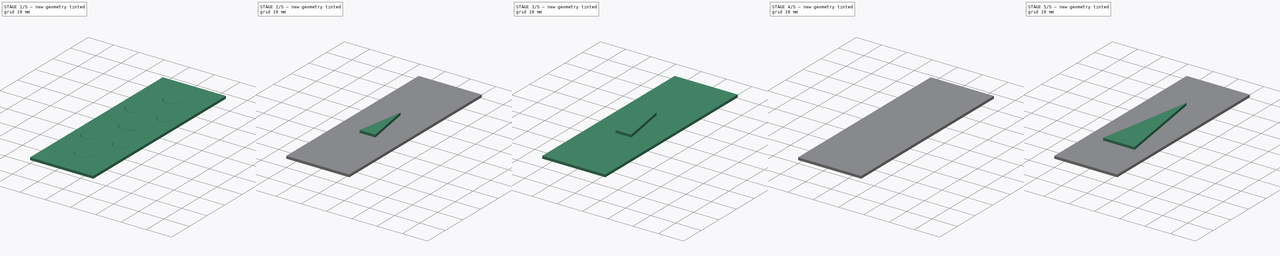
[diagram: build sequence overview — one tinted view per stage of 5, left to right]
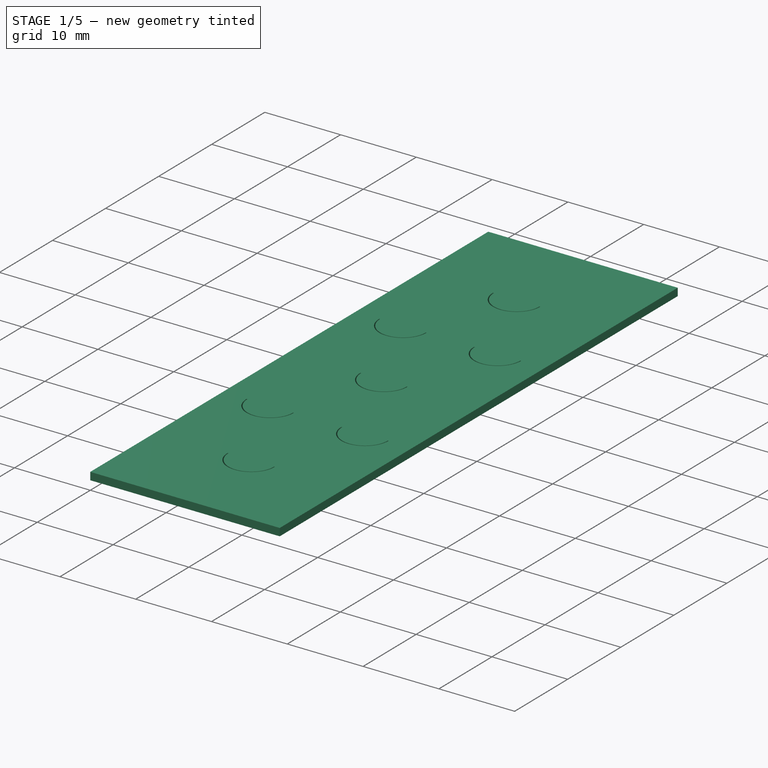
[diagram: stage 1 of 5 — iso view after this stage's code; geometry added in this stage tinted green]
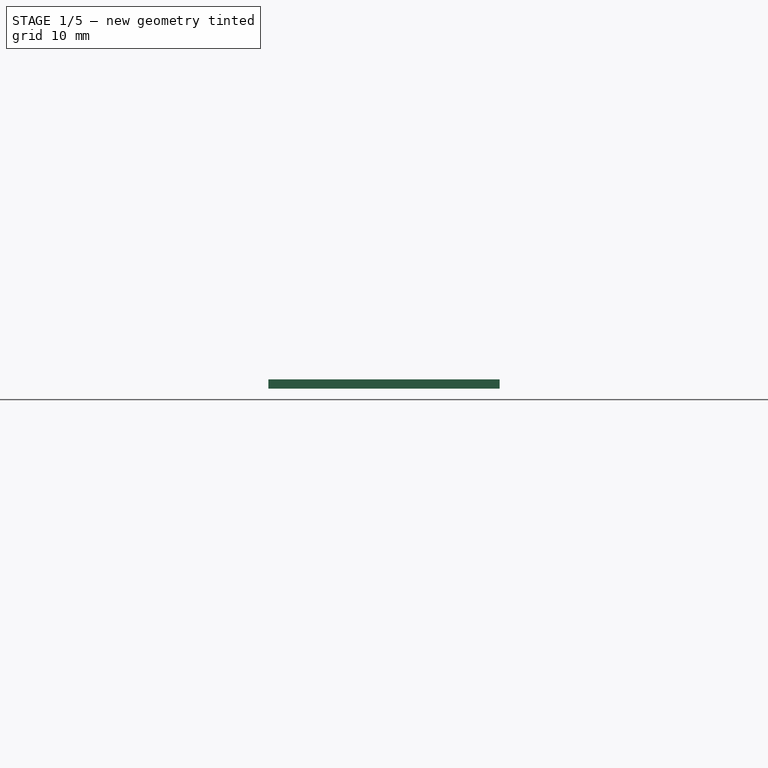
[diagram: stage 1 of 5 — front view after this stage's code; geometry added in this stage tinted green]
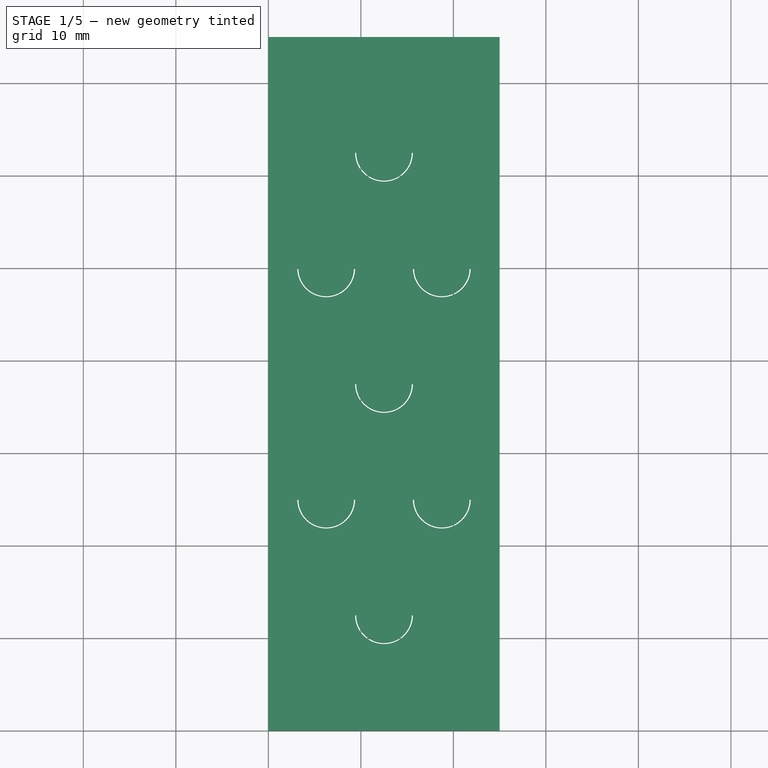
[diagram: stage 1 of 5 — top view after this stage's code; geometry added in this stage tinted green]
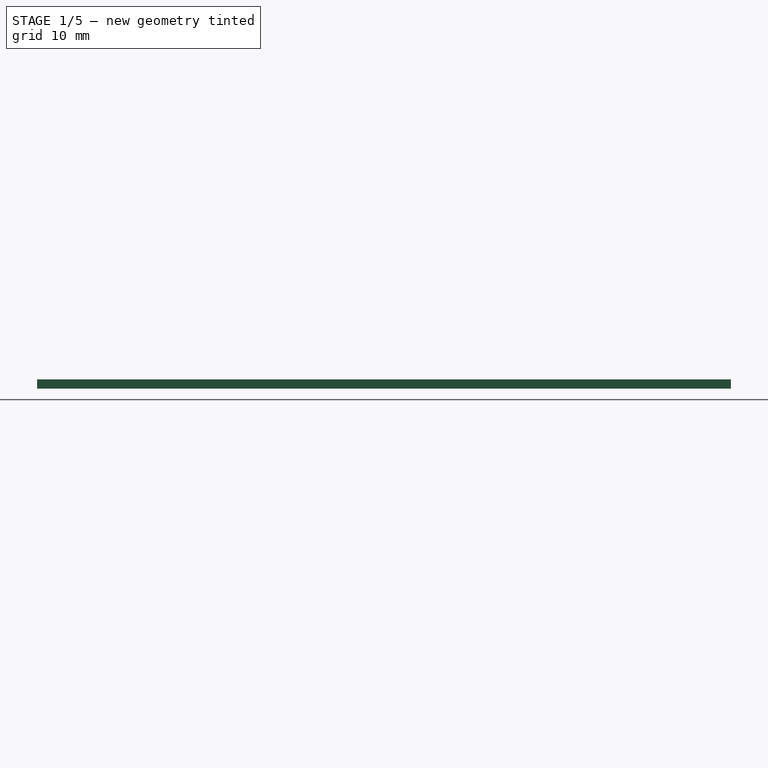
[diagram: stage 1 of 5 — right view after this stage's code; geometry added in this stage tinted green]
FCSTD DOCUMENT  (FreeCAD 0.21R33771 (Git))
Label: Placa PPS
License: All rights reserved
LicenseURL: http://en.wikipedia.org/wiki/All_rights_reserved
objects: Sketcher::SketchObject×31, PartDesign::Pad×31, PartDesign::Body×31, PartDesign::LinearPattern×9, PartDesign::Boolean×7
note: 140 computed .brp shape members not serialized (recipe doc carries the construction recipe); baked Part::Feature solids carry a one-line shape summary decoded from their .brp

FEATURE [Sketcher::SketchObject] Sketch024
  FullyConstrained = true
  MapMode = 5
  Support = -> [XY_Plane023]
  sketch-geometry (4):
    g0: LineSegment StartX=0 StartY=0 StartZ=0 EndX=25 EndY=0 EndZ=0
    g1: LineSegment StartX=25 StartY=0 StartZ=0 EndX=25 EndY=75 EndZ=0
    g2: LineSegment StartX=25 StartY=75 StartZ=0 EndX=0 EndY=75 EndZ=0
    g3: LineSegment StartX=0 StartY=75 StartZ=0 EndX=0 EndY=0 EndZ=0
  constraints (11):
    c: Coincident(g0,g-1)
    c: PointOnObject(g0,g-1)
    c: DistanceX(g0,g0) = 25
    c: Coincident(g1,g0)
    c: Vertical(g1)
    c: DistanceY(g1,g1) = 75
    c: Coincident(g2,g1)
    c: PointOnObject(g2,g-2)
    c: Horizontal(g2)
    c: Coincident(g3,g2)
    c: Coincident(g3,g0)
FEATURE [PartDesign::Pad] Pad023
  Direction = (0,0,1)
  Length = 1
  Length2 = 10
  Profile = -> Sketch024
  ReferenceAxis = -> Sketch024 [N_Axis]
  Refine = true
  Type = 0
FEATURE [PartDesign::Body] Body020  label="Agujero Triangular Patron-1 25%"
  Group = -> [Sketch022,Pad021,Boolean005]
  Origin = -> Origin020
  Tip = -> Boolean005
FEATURE [Sketcher::SketchObject] Sketch027
  FullyConstrained = true
  MapMode = 5
  Support = -> [XY_Plane022]
  sketch-geometry (5):
    g0: GeomPoint X=12.5 Y=12.5 Z=0
    g1: ArcOfCircle CenterX=12.5 CenterY=12.5 CenterZ=0 NormalX=0 NormalY=0 NormalZ=1 AngleXU=0 Radius=3.125 StartAngle=3.14159 EndAngle=6.28319
    g2: ArcOfCircle CenterX=12.5 CenterY=12.5 CenterZ=0 NormalX=0 NormalY=0 NormalZ=1 AngleXU=0 Radius=3 StartAngle=3.14159 EndAngle=6.28319
    g3: LineSegment StartX=15.625 StartY=12.5 StartZ=0 EndX=15.5 EndY=12.5 EndZ=0
    g4: LineSegment StartX=9.5 StartY=12.5 StartZ=0 EndX=9.375 EndY=12.5 EndZ=0
  constraints (14):
    c: DistanceY(g0) = 12.5
    c: DistanceX(g0) = 12.5
    c: Coincident(g1,g0)
    c: DistanceY(g1,g1) = 0
    c: DistanceY(g1,g1) = 0
    c: Coincident(g2,g1)
    c: DistanceY(g2,g1) = 0
    c: DistanceY(g2,g1) = 0
    c: Radius(g2) = 3
    c: Radius(g1) = 3.125
    c: Coincident(g3,g1)
    c: Coincident(g3,g2)
    c: Coincident(g4,g2)
    c: Coincident(g4,g1)
FEATURE [PartDesign::Pad] Pad026
  Direction = (0,0,1)
  Length = 10
  Length2 = 10
  Midplane = true
  Profile = -> Sketch027
  ReferenceAxis = -> Sketch027 [N_Axis]
  Refine = true
  Type = 0
FEATURE [PartDesign::Body] Body021  label="pattern001"
  Group = -> [Sketch027,Pad026]
  Origin = -> Origin021
  Tip = -> Pad026
FEATURE [Sketcher::SketchObject] Sketch029
  FullyConstrained = true
  MapMode = 5
  Support = -> [XY_Plane026]
  sketch-geometry (5):
    g0: GeomPoint X=6.25 Y=25 Z=0
    g1: ArcOfCircle CenterX=6.25 CenterY=25 CenterZ=0 NormalX=0 NormalY=0 NormalZ=1 AngleXU=0 Radius=3.125 StartAngle=3.14159 EndAngle=6.28319
    g2: ArcOfCircle CenterX=6.25 CenterY=25 CenterZ=0 NormalX=0 NormalY=0 NormalZ=1 AngleXU=0 Radius=3 StartAngle=3.14159 EndAngle=6.28319
    g3: LineSegment StartX=9.375 StartY=25 StartZ=0 EndX=9.25 EndY=25 EndZ=0
    g4: LineSegment StartX=3.25 StartY=25 StartZ=0 EndX=3.125 EndY=25 EndZ=0
  constraints (14):
    c: DistanceY(g0) = 25
    c: DistanceX(g0) = 6.25
    c: Coincident(g1,g0)
    c: DistanceY(g1,g1) = 0
    c: DistanceY(g1,g1) = 0
    c: Coincident(g2,g1)
    c: DistanceY(g2,g1) = 0
    c: DistanceY(g2,g1) = 0
    c: Radius(g2) = 3
    c: Radius(g1) = 3.125
    c: Coincident(g3,g1)
    c: Coincident(g3,g2)
    c: Coincident(g4,g2)
    c: Coincident(g4,g1)
FEATURE [PartDesign::Pad] Pad027
  Direction = (0,0,1)
  Length = 10
  Length2 = 10
  Midplane = true
  Profile = -> Sketch029
  ReferenceAxis = -> Sketch029 [N_Axis]
  Refine = true
  Type = 0
FEATURE [PartDesign::Body] Body025  label="pattern002"
  Group = -> [Sketch029,Pad027]
  Origin = -> Origin025
  Tip = -> Pad027
FEATURE [Sketcher::SketchObject] Sketch031
  FullyConstrained = true
  MapMode = 5
  Support = -> [XY_Plane027]
  sketch-geometry (5):
    g0: GeomPoint X=18.75 Y=25 Z=0
    g1: ArcOfCircle CenterX=18.75 CenterY=25 CenterZ=0 NormalX=0 NormalY=0 NormalZ=1 AngleXU=0 Radius=3.125 StartAngle=3.14159 EndAngle=6.28319
    g2: ArcOfCircle CenterX=18.75 CenterY=25 CenterZ=0 NormalX=0 NormalY=0 NormalZ=1 AngleXU=0 Radius=3 StartAngle=3.14159 EndAngle=6.28319
    g3: LineSegment StartX=21.875 StartY=25 StartZ=0 EndX=21.75 EndY=25 EndZ=0
    g4: LineSegment StartX=15.75 StartY=25 StartZ=0 EndX=15.625 EndY=25 EndZ=0
  constraints (14):
    c: DistanceY(g0) = 25
    c: DistanceX(g0) = 18.75
    c: Coincident(g1,g0)
    c: DistanceY(g1,g1) = 0
    c: DistanceY(g1,g1) = 0
    c: Coincident(g2,g1)
    c: DistanceY(g2,g1) = 0
    c: DistanceY(g2,g1) = 0
    c: Radius(g2) = 3
    c: Radius(g1) = 3.125
    c: Coincident(g3,g1)
    c: Coincident(g3,g2)
    c: Coincident(g4,g2)
    c: Coincident(g4,g1)
FEATURE [PartDesign::Pad] Pad028
  Direction = (0,0,1)
  Length = 10
  Length2 = 10
  Midplane = true
  Profile = -> Sketch031
  ReferenceAxis = -> Sketch031 [N_Axis]
  Refine = true
  Type = 0
FEATURE [PartDesign::Body] Body026  label="pattern003"
  Group = -> [Sketch031,Pad028]
  Origin = -> Origin026
  Tip = -> Pad028
FEATURE [Sketcher::SketchObject] Sketch032
  FullyConstrained = true
  MapMode = 5
  Support = -> [XY_Plane028]
  sketch-geometry (5):
    g0: GeomPoint X=12.5 Y=37.5 Z=0
    g1: ArcOfCircle CenterX=12.5 CenterY=37.5 CenterZ=0 NormalX=0 NormalY=0 NormalZ=1 AngleXU=0 Radius=3.125 StartAngle=3.14159 EndAngle=6.28319
    g2: ArcOfCircle CenterX=12.5 CenterY=37.5 CenterZ=0 NormalX=0 NormalY=0 NormalZ=1 AngleXU=0 Radius=3 StartAngle=3.14159 EndAngle=6.28319
    g3: LineSegment StartX=15.625 StartY=37.5 StartZ=0 EndX=15.5 EndY=37.5 EndZ=0
    g4: LineSegment StartX=9.5 StartY=37.5 StartZ=0 EndX=9.375 EndY=37.5 EndZ=0
  constraints (14):
    c: DistanceY(g0) = 37.5
    c: DistanceX(g0) = 12.5
    c: Coincident(g1,g0)
    c: DistanceY(g1,g1) = 0
    c: DistanceY(g1,g1) = 0
    c: Coincident(g2,g1)
    c: DistanceY(g2,g1) = 0
    c: DistanceY(g2,g1) = 0
    c: Radius(g2) = 3
    c: Radius(g1) = 3.125
    c: Coincident(g3,g1)
    c: Coincident(g3,g2)
    c: Coincident(g4,g2)
    c: Coincident(g4,g1)
FEATURE [PartDesign::Pad] Pad029
  Direction = (0,0,1)
  Length = 10
  Length2 = 10
  Midplane = true
  Profile = -> Sketch032
  ReferenceAxis = -> Sketch032 [N_Axis]
  Refine = true
  Type = 0
FEATURE [PartDesign::Body] Body027  label="pattern004"
  Group = -> [Sketch032,Pad029]
  Origin = -> Origin027
  Tip = -> Pad029
FEATURE [Sketcher::SketchObject] Sketch033
  FullyConstrained = true
  MapMode = 5
  Support = -> [XY_Plane029]
  sketch-geometry (5):
    g0: GeomPoint X=6.25 Y=50 Z=0
    g1: ArcOfCircle CenterX=6.25 CenterY=50 CenterZ=0 NormalX=0 NormalY=0 NormalZ=1 AngleXU=0 Radius=3.125 StartAngle=3.14159 EndAngle=6.28319
    g2: ArcOfCircle CenterX=6.25 CenterY=50 CenterZ=0 NormalX=0 NormalY=0 NormalZ=1 AngleXU=0 Radius=3 StartAngle=3.14159 EndAngle=6.28319
    g3: LineSegment StartX=9.375 StartY=50 StartZ=0 EndX=9.25 EndY=50 EndZ=0
    g4: LineSegment StartX=3.25 StartY=50 StartZ=0 EndX=3.125 EndY=50 EndZ=0
  constraints (14):
    c: DistanceY(g0) = 50
    c: DistanceX(g0) = 6.25
    c: Coincident(g1,g0)
    c: DistanceY(g1,g1) = 0
    c: DistanceY(g1,g1) = 0
    c: Coincident(g2,g1)
    c: DistanceY(g2,g1) = 0
    c: DistanceY(g2,g1) = 0
    c: Radius(g2) = 3
    c: Radius(g1) = 3.125
    c: Coincident(g3,g1)
    c: Coincident(g3,g2)
    c: Coincident(g4,g2)
    c: Coincident(g4,g1)
FEATURE [PartDesign::Pad] Pad030
  Direction = (0,0,1)
  Length = 10
  Length2 = 10
  Midplane = true
  Profile = -> Sketch033
  ReferenceAxis = -> Sketch033 [N_Axis]
  Refine = true
  Type = 0
FEATURE [PartDesign::Body] Body028  label="pattern005"
  Group = -> [Sketch033,Pad030]
  Origin = -> Origin028
  Tip = -> Pad030
FEATURE [Sketcher::SketchObject] Sketch034
  FullyConstrained = true
  MapMode = 5
  Support = -> [XY_Plane030]
  sketch-geometry (5):
    g0: GeomPoint X=18.75 Y=50 Z=0
    g1: ArcOfCircle CenterX=18.75 CenterY=50 CenterZ=0 NormalX=0 NormalY=0 NormalZ=1 AngleXU=0 Radius=3.125 StartAngle=3.14159 EndAngle=6.28319
    g2: ArcOfCircle CenterX=18.75 CenterY=50 CenterZ=0 NormalX=0 NormalY=0 NormalZ=1 AngleXU=0 Radius=3 StartAngle=3.14159 EndAngle=6.28319
    g3: LineSegment StartX=21.875 StartY=50 StartZ=0 EndX=21.75 EndY=50 EndZ=0
    g4: LineSegment StartX=15.75 StartY=50 StartZ=0 EndX=15.625 EndY=50 EndZ=0
  constraints (14):
    c: DistanceY(g0) = 50
    c: DistanceX(g0) = 18.75
    c: Coincident(g1,g0)
    c: DistanceY(g1,g1) = 0
    c: DistanceY(g1,g1) = 0
    c: Coincident(g2,g1)
    c: DistanceY(g2,g1) = 0
    c: DistanceY(g2,g1) = 0
    c: Radius(g2) = 3
    c: Radius(g1) = 3.125
    c: Coincident(g3,g1)
    c: Coincident(g3,g2)
    c: Coincident(g4,g2)
    c: Coincident(g4,g1)
FEATURE [PartDesign::Pad] Pad031
  Direction = (0,0,1)
  Length = 10
  Length2 = 10
  Midplane = true
  Profile = -> Sketch034
  ReferenceAxis = -> Sketch034 [N_Axis]
  Refine = true
  Type = 0
FEATURE [PartDesign::Body] Body029  label="pattern006"
  Group = -> [Sketch034,Pad031]
  Origin = -> Origin029
  Tip = -> Pad031
FEATURE [Sketcher::SketchObject] Sketch035
  FullyConstrained = true
  MapMode = 5
  Support = -> [XY_Plane031]
  sketch-geometry (5):
    g0: GeomPoint X=12.5 Y=62.5 Z=0
    g1: ArcOfCircle CenterX=12.5 CenterY=62.5 CenterZ=0 NormalX=0 NormalY=0 NormalZ=1 AngleXU=0 Radius=3.125 StartAngle=3.14159 EndAngle=6.28319
    g2: ArcOfCircle CenterX=12.5 CenterY=62.5 CenterZ=0 NormalX=0 NormalY=0 NormalZ=1 AngleXU=0 Radius=3 StartAngle=3.14159 EndAngle=6.28319
    g3: LineSegment StartX=15.625 StartY=62.5 StartZ=0 EndX=15.5 EndY=62.5 EndZ=0
    g4: LineSegment StartX=9.5 StartY=62.5 StartZ=0 EndX=9.375 EndY=62.5 EndZ=0
  constraints (14):
    c: DistanceY(g0) = 62.5
    c: DistanceX(g0) = 12.5
    c: Coincident(g1,g0)
    c: DistanceY(g1,g1) = 0
    c: DistanceY(g1,g1) = 0
    c: Coincident(g2,g1)
    c: DistanceY(g2,g1) = 0
    c: DistanceY(g2,g1) = 0
    c: Radius(g2) = 3
    c: Radius(g1) = 3.125
    c: Coincident(g3,g1)
    c: Coincident(g3,g2)
    c: Coincident(g4,g2)
    c: Coincident(g4,g1)
FEATURE [PartDesign::Pad] Pad032
  Direction = (0,0,1)
  Length = 10
  Length2 = 10
  Midplane = true
  Profile = -> Sketch035
  ReferenceAxis = -> Sketch035 [N_Axis]
  Refine = true
  Type = 0
FEATURE [PartDesign::Body] Body030  label="pattern007"
  Group = -> [Sketch035,Pad032]
  Origin = -> Origin030
  Tip = -> Pad032
FEATURE [PartDesign::Boolean] Boolean006
  BaseFeature = -> Pad023
  Group = -> [Body028,Body026,Body021,Body025,Body027,Body029,Body030]
  Refine = true
  Type = 1
FEATURE [PartDesign::Body] Body022  label="Agujero Medialuna Patron-1 25%"
  Group = -> [Sketch024,Pad023,Boolean006]
  Origin = -> Origin022
  Tip = -> Boolean006
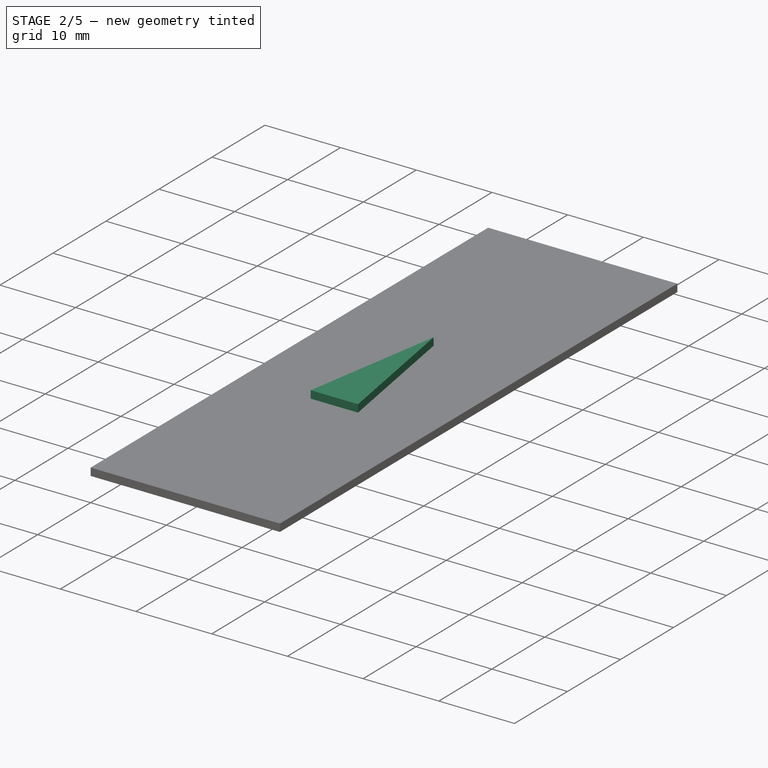
[diagram: stage 2 of 5 — iso view after this stage's code; geometry added in this stage tinted green]
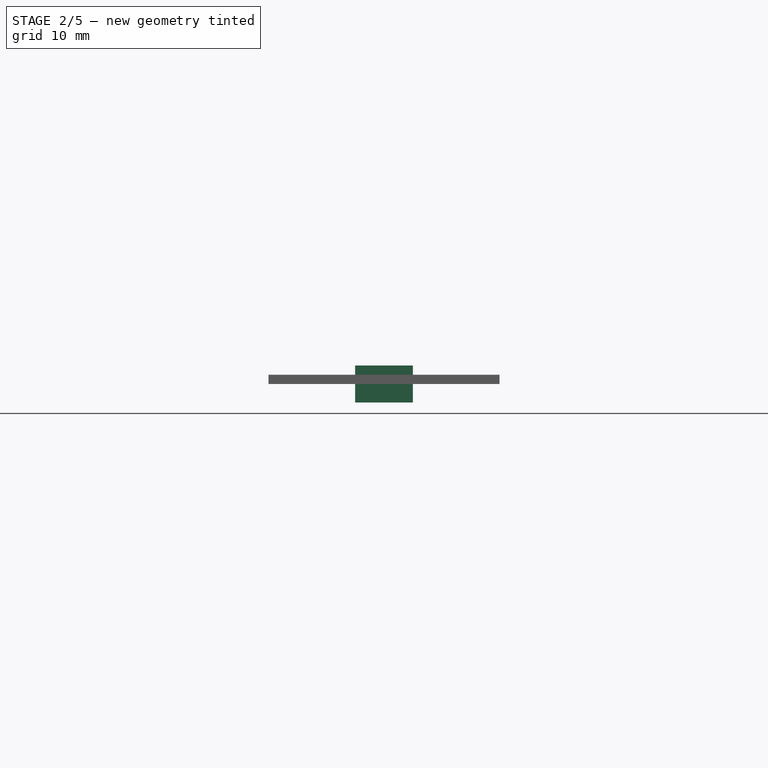
[diagram: stage 2 of 5 — front view after this stage's code; geometry added in this stage tinted green]
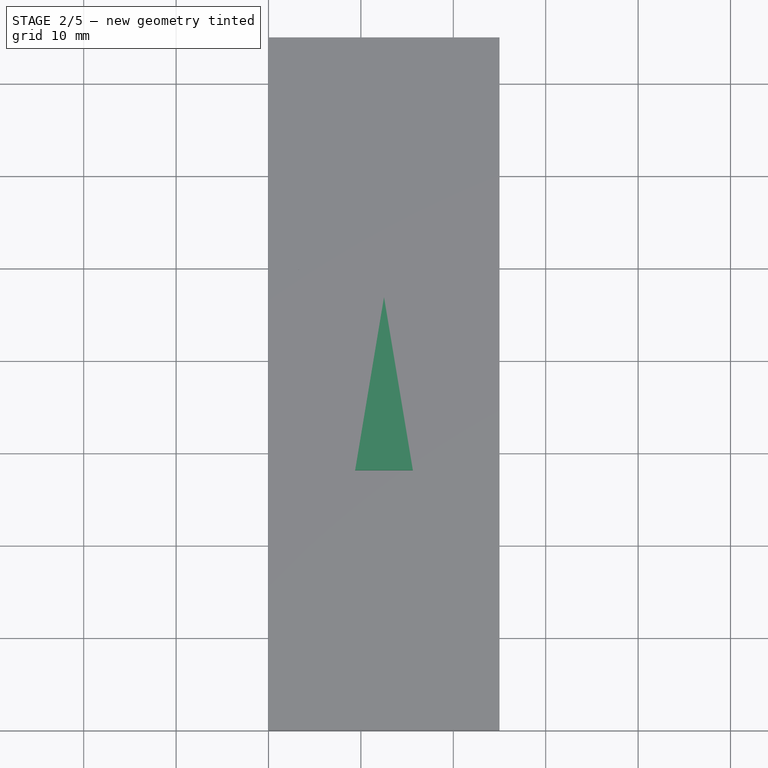
[diagram: stage 2 of 5 — top view after this stage's code; geometry added in this stage tinted green]
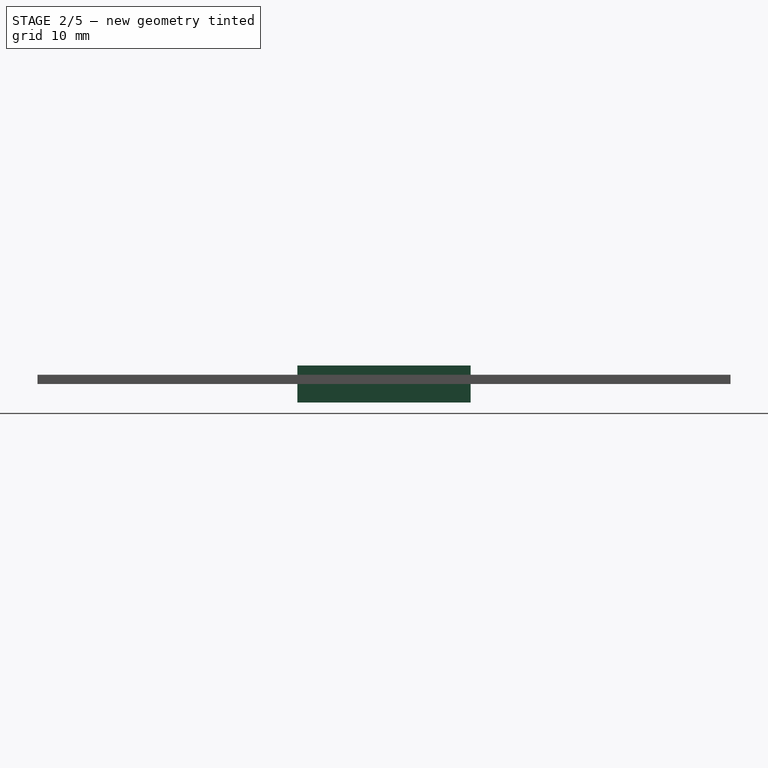
[diagram: stage 2 of 5 — right view after this stage's code; geometry added in this stage tinted green]
FEATURE [PartDesign::Body] Body009  label="Agujero Triangular - 25% Pattern003"
  Group = -> [Pad010,Sketch011,LinearPattern003]
  Origin = -> Origin009
  Placement = pos=(-8,-23,0) rot=(0,0,1;0rad)
  Tip = -> LinearPattern003
FEATURE [Sketcher::SketchObject] Sketch012
  FullyConstrained = true
  MapMode = 5
  Support = -> [XY_Plane011]
  sketch-geometry (3):
    g0: LineSegment StartX=12.5 StartY=46.875 StartZ=0 EndX=9.375 EndY=28.125 EndZ=0
    g1: LineSegment StartX=9.375 StartY=28.125 StartZ=0 EndX=15.625 EndY=28.125 EndZ=0
    g2: LineSegment StartX=15.625 StartY=28.125 StartZ=0 EndX=12.5 EndY=46.875 EndZ=0
  constraints (9):
    c: Coincident(g1,g0)
    c: Horizontal(g1)
    c: Coincident(g2,g1)
    c: Coincident(g2,g0)
    c: DistanceX(g1,g1) = 6.25
    c: DistanceY(g0,g0) = 18.75
    c: DistanceX(g0,g0) = 3.125
    c: DistanceY(g-1,g0) = 28.125
    c: DistanceX(g-1,g0) = 9.375
FEATURE [PartDesign::Pad] Pad011
  Direction = (0,0,1)
  Length = 2
  Length2 = 2
  Profile = -> Sketch012
  ReferenceAxis = -> Sketch012 [N_Axis]
  Refine = true
  Type = 4
FEATURE [PartDesign::Body] Body010  label="Agujero Triangular - 25% Pattern004"
  Group = -> [Pad011,Sketch012,LinearPattern004]
  Origin = -> Origin010
  Placement = pos=(0,-23,0) rot=(0,0,1;0rad)
  Tip = -> LinearPattern004
FEATURE [Sketcher::SketchObject] Sketch013
  FullyConstrained = true
  MapMode = 5
  Support = -> [XY_Plane012]
  sketch-geometry (3):
    g0: LineSegment StartX=12.5 StartY=46.875 StartZ=0 EndX=9.375 EndY=28.125 EndZ=0
    g1: LineSegment StartX=9.375 StartY=28.125 StartZ=0 EndX=15.625 EndY=28.125 EndZ=0
    g2: LineSegment StartX=15.625 StartY=28.125 StartZ=0 EndX=12.5 EndY=46.875 EndZ=0
  constraints (9):
    c: Coincident(g1,g0)
    c: Horizontal(g1)
    c: Coincident(g2,g1)
    c: Coincident(g2,g0)
    c: DistanceX(g1,g1) = 6.25
    c: DistanceY(g0,g0) = 18.75
    c: DistanceX(g0,g0) = 3.125
    c: DistanceY(g-1,g0) = 28.125
    c: DistanceX(g-1,g0) = 9.375
FEATURE [PartDesign::Pad] Pad012
  Direction = (0,0,1)
  Length = 2
  Length2 = 2
  Profile = -> Sketch013
  ReferenceAxis = -> Sketch013 [N_Axis]
  Refine = true
  Type = 4
FEATURE [PartDesign::LinearPattern] LinearPattern005
  BaseFeature = -> Pad012
  Direction = -> Sketch013 [H_Axis]
  Length = 10
  Occurrences = 2
  Originals = -> [Pad012]
  Refine = true
FEATURE [PartDesign::Body] Body011  label="Agujero Triangular - 25% Pattern005"
  Group = -> [Pad012,Sketch013,LinearPattern005]
  Origin = -> Origin011
  Placement = pos=(8,-23,0) rot=(0,0,1;0rad)
  Tip = -> LinearPattern005
FEATURE [Sketcher::SketchObject] Sketch014
  FullyConstrained = true
  MapMode = 5
  Support = -> [XY_Plane013]
  sketch-geometry (3):
    g0: LineSegment StartX=12.5 StartY=46.875 StartZ=0 EndX=9.375 EndY=28.125 EndZ=0
    g1: LineSegment StartX=9.375 StartY=28.125 StartZ=0 EndX=15.625 EndY=28.125 EndZ=0
    g2: LineSegment StartX=15.625 StartY=28.125 StartZ=0 EndX=12.5 EndY=46.875 EndZ=0
  constraints (9):
    c: Coincident(g1,g0)
    c: Horizontal(g1)
    c: Coincident(g2,g1)
    c: Coincident(g2,g0)
    c: DistanceX(g1,g1) = 6.25
    c: DistanceY(g0,g0) = 18.75
    c: DistanceX(g0,g0) = 3.125
    c: DistanceY(g-1,g0) = 28.125
    c: DistanceX(g-1,g0) = 9.375
FEATURE [PartDesign::Pad] Pad013
  Direction = (0,0,1)
  Length = 2
  Length2 = 2
  Profile = -> Sketch014
  ReferenceAxis = -> Sketch014 [N_Axis]
  Refine = true
  Type = 4
FEATURE [PartDesign::LinearPattern] LinearPattern006
  BaseFeature = -> Pad013
  Direction = -> Sketch014 [H_Axis]
  Length = 10
  Occurrences = 2
  Originals = -> [Pad013]
  Refine = true
FEATURE [PartDesign::Body] Body012  label="Agujero Triangular - 25% Pattern006"
  Group = -> [Pad013,Sketch014,LinearPattern006]
  Origin = -> Origin012
  Placement = pos=(8,23,0) rot=(0,0,1;0rad)
  Tip = -> LinearPattern006
FEATURE [Sketcher::SketchObject] Sketch015
  FullyConstrained = true
  MapMode = 5
  Support = -> [XY_Plane014]
  sketch-geometry (3):
    g0: LineSegment StartX=12.5 StartY=46.875 StartZ=0 EndX=9.375 EndY=28.125 EndZ=0
    g1: LineSegment StartX=9.375 StartY=28.125 StartZ=0 EndX=15.625 EndY=28.125 EndZ=0
    g2: LineSegment StartX=15.625 StartY=28.125 StartZ=0 EndX=12.5 EndY=46.875 EndZ=0
  constraints (9):
    c: Coincident(g1,g0)
    c: Horizontal(g1)
    c: Coincident(g2,g1)
    c: Coincident(g2,g0)
    c: DistanceX(g1,g1) = 6.25
    c: DistanceY(g0,g0) = 18.75
    c: DistanceX(g0,g0) = 3.125
    c: DistanceY(g-1,g0) = 28.125
    c: DistanceX(g-1,g0) = 9.375
FEATURE [PartDesign::Pad] Pad014
  Direction = (0,0,1)
  Length = 2
  Length2 = 2
  Profile = -> Sketch015
  ReferenceAxis = -> Sketch015 [N_Axis]
  Refine = true
  Type = 4
FEATURE [PartDesign::LinearPattern] LinearPattern007
  BaseFeature = -> Pad014
  Direction = -> Sketch015 [H_Axis]
  Length = 10
  Occurrences = 2
  Originals = -> [Pad014]
  Refine = true
FEATURE [PartDesign::Body] Body013  label="Agujero Triangular - 25% Pattern007"
  Group = -> [Pad014,Sketch015,LinearPattern007]
  Origin = -> Origin013
  Placement = pos=(0,23,0) rot=(0,0,1;0rad)
  Tip = -> LinearPattern007
FEATURE [Sketcher::SketchObject] Sketch016
  FullyConstrained = true
  MapMode = 5
  Support = -> [XY_Plane015]
  sketch-geometry (3):
    g0: LineSegment StartX=12.5 StartY=46.875 StartZ=0 EndX=9.375 EndY=28.125 EndZ=0
    g1: LineSegment StartX=9.375 StartY=28.125 StartZ=0 EndX=15.625 EndY=28.125 EndZ=0
    g2: LineSegment StartX=15.625 StartY=28.125 StartZ=0 EndX=12.5 EndY=46.875 EndZ=0
  constraints (9):
    c: Coincident(g1,g0)
    c: Horizontal(g1)
    c: Coincident(g2,g1)
    c: Coincident(g2,g0)
    c: DistanceX(g1,g1) = 6.25
    c: DistanceY(g0,g0) = 18.75
    c: DistanceX(g0,g0) = 3.125
    c: DistanceY(g-1,g0) = 28.125
    c: DistanceX(g-1,g0) = 9.375
FEATURE [PartDesign::Pad] Pad015
  Direction = (0,0,1)
  Length = 2
  Length2 = 2
  Profile = -> Sketch016
  ReferenceAxis = -> Sketch016 [N_Axis]
  Refine = true
  Type = 4
FEATURE [PartDesign::LinearPattern] LinearPattern008
  BaseFeature = -> Pad015
  Direction = -> Sketch016 [H_Axis]
  Length = 10
  Occurrences = 2
  Originals = -> [Pad015]
  Refine = true
FEATURE [Sketcher::SketchObject] Sketch022
  FullyConstrained = true
  MapMode = 5
  Support = -> [XY_Plane021]
  sketch-geometry (4):
    g0: LineSegment StartX=0 StartY=0 StartZ=0 EndX=25 EndY=0 EndZ=0
    g1: LineSegment StartX=25 StartY=0 StartZ=0 EndX=25 EndY=75 EndZ=0
    g2: LineSegment StartX=25 StartY=75 StartZ=0 EndX=0 EndY=75 EndZ=0
    g3: LineSegment StartX=0 StartY=75 StartZ=0 EndX=0 EndY=0 EndZ=0
  constraints (11):
    c: Coincident(g0,g-1)
    c: PointOnObject(g0,g-1)
    c: DistanceX(g0,g0) = 25
    c: Coincident(g1,g0)
    c: Vertical(g1)
    c: DistanceY(g1,g1) = 75
    c: Coincident(g2,g1)
    c: PointOnObject(g2,g-2)
    c: Horizontal(g2)
    c: Coincident(g3,g2)
    c: Coincident(g3,g0)
FEATURE [PartDesign::Pad] Pad021
  Direction = (0,0,1)
  Length = 1
  Length2 = 10
  Profile = -> Sketch022
  ReferenceAxis = -> Sketch022 [N_Axis]
  Refine = true
  Type = 0
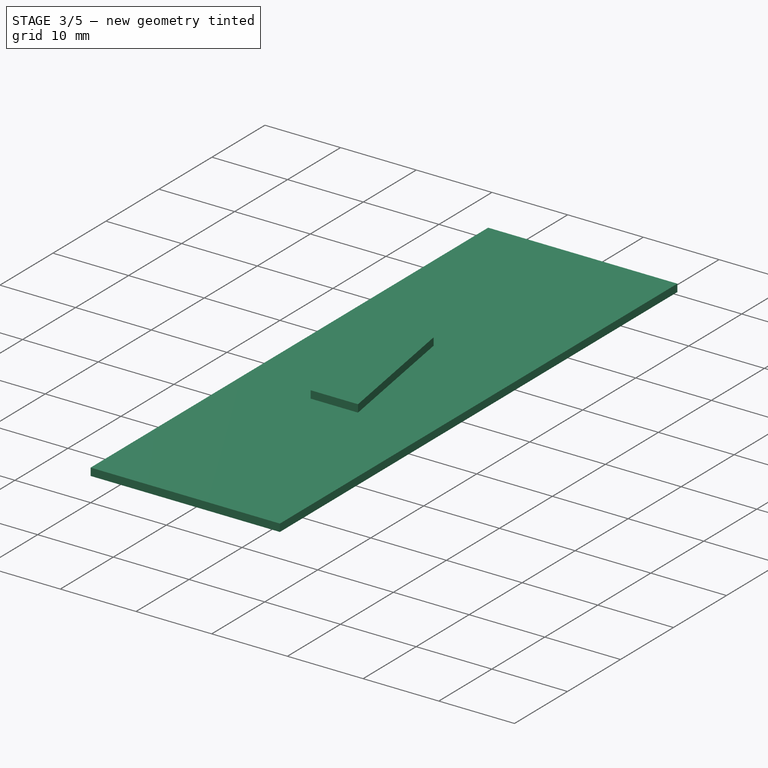
[diagram: stage 3 of 5 — iso view after this stage's code; geometry added in this stage tinted green]
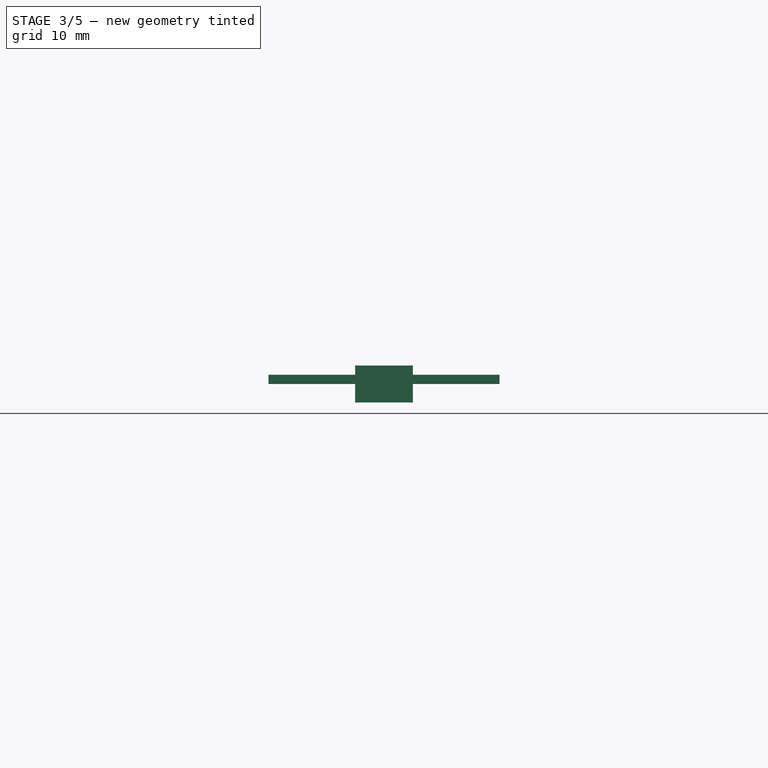
[diagram: stage 3 of 5 — front view after this stage's code; geometry added in this stage tinted green]
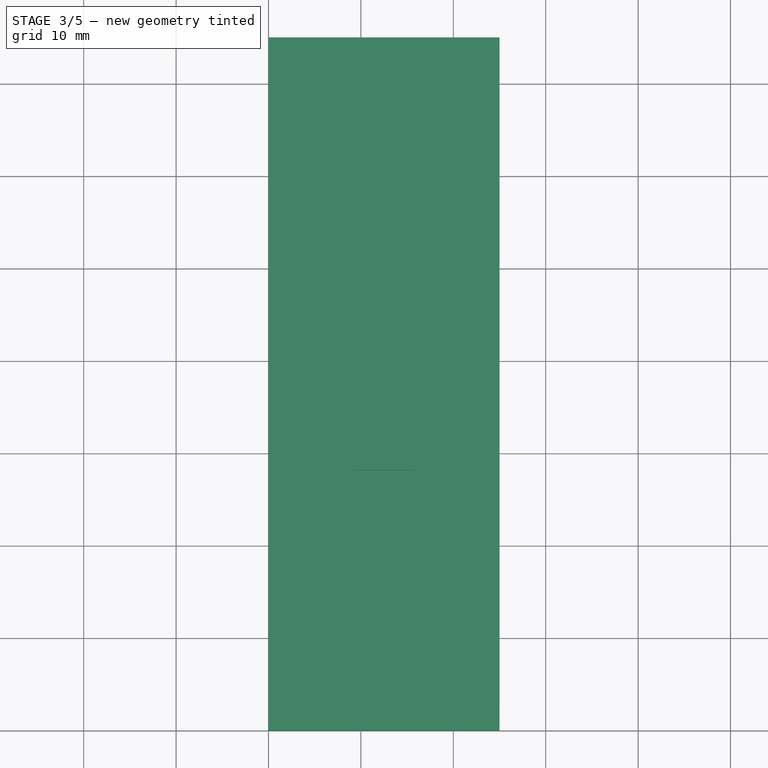
[diagram: stage 3 of 5 — top view after this stage's code; geometry added in this stage tinted green]
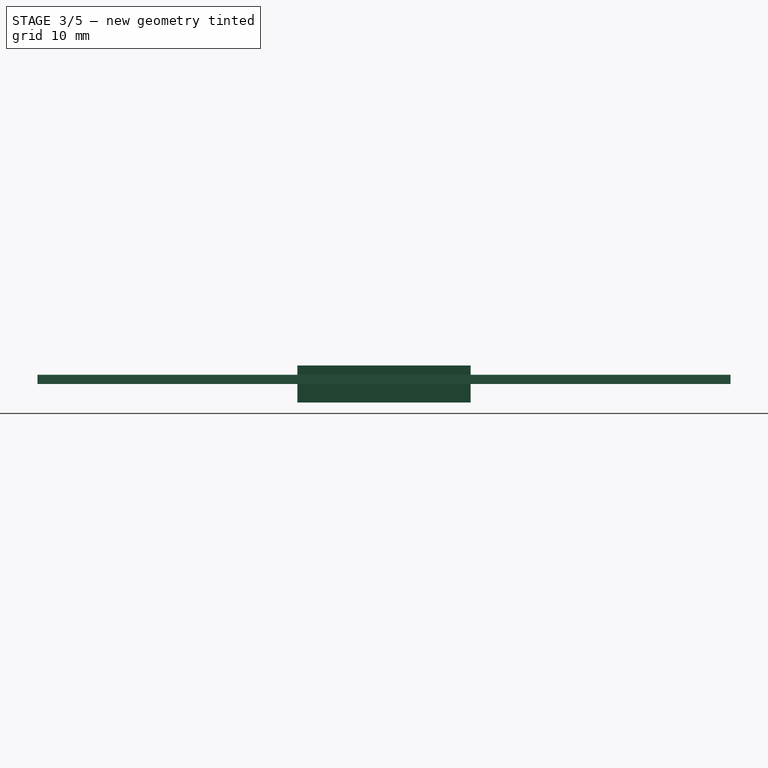
[diagram: stage 3 of 5 — right view after this stage's code; geometry added in this stage tinted green]
FEATURE [PartDesign::Body] Body005  label="Agujero Medialuna - 75%"
  Group = -> [Sketch006,Pad005]
  Origin = -> Origin005
  Tip = -> Pad005
FEATURE [Sketcher::SketchObject] Sketch008
  FullyConstrained = true
  MapMode = 5
  Support = -> [XY_Plane007]
  sketch-geometry (3):
    g0: LineSegment StartX=12.5 StartY=46.875 StartZ=0 EndX=9.375 EndY=28.125 EndZ=0
    g1: LineSegment StartX=9.375 StartY=28.125 StartZ=0 EndX=15.625 EndY=28.125 EndZ=0
    g2: LineSegment StartX=15.625 StartY=28.125 StartZ=0 EndX=12.5 EndY=46.875 EndZ=0
  constraints (9):
    c: Coincident(g1,g0)
    c: Horizontal(g1)
    c: Coincident(g2,g1)
    c: Coincident(g2,g0)
    c: DistanceX(g1,g1) = 6.25
    c: DistanceY(g0,g0) = 18.75
    c: DistanceX(g0,g0) = 3.125
    c: DistanceY(g-1,g0) = 28.125
    c: DistanceX(g-1,g0) = 9.375
FEATURE [PartDesign::Pad] Pad007
  Direction = (0,0,1)
  Length = 2
  Length2 = 2
  Profile = -> Sketch008
  ReferenceAxis = -> Sketch008 [N_Axis]
  Refine = true
  Type = 4
FEATURE [PartDesign::LinearPattern] LinearPattern
  BaseFeature = -> Pad007
  Direction = -> Sketch008 [H_Axis]
  Length = 10
  Occurrences = 2
  Originals = -> [Pad007]
  Refine = true
FEATURE [PartDesign::Body] Body006  label="Agujero Triangular - 25% Pattern"
  Group = -> [Pad007,Sketch008,LinearPattern]
  Origin = -> Origin006
  Tip = -> LinearPattern
FEATURE [Sketcher::SketchObject] Sketch009
  FullyConstrained = true
  MapMode = 5
  Support = -> [XY_Plane008]
  sketch-geometry (3):
    g0: LineSegment StartX=12.5 StartY=46.875 StartZ=0 EndX=9.375 EndY=28.125 EndZ=0
    g1: LineSegment StartX=9.375 StartY=28.125 StartZ=0 EndX=15.625 EndY=28.125 EndZ=0
    g2: LineSegment StartX=15.625 StartY=28.125 StartZ=0 EndX=12.5 EndY=46.875 EndZ=0
  constraints (9):
    c: Coincident(g1,g0)
    c: Horizontal(g1)
    c: Coincident(g2,g1)
    c: Coincident(g2,g0)
    c: DistanceX(g1,g1) = 6.25
    c: DistanceY(g0,g0) = 18.75
    c: DistanceX(g0,g0) = 3.125
    c: DistanceY(g-1,g0) = 28.125
    c: DistanceX(g-1,g0) = 9.375
FEATURE [PartDesign::Pad] Pad008
  Direction = (0,0,1)
  Length = 2
  Length2 = 2
  Profile = -> Sketch009
  ReferenceAxis = -> Sketch009 [N_Axis]
  Refine = true
  Type = 4
FEATURE [PartDesign::LinearPattern] LinearPattern001
  BaseFeature = -> Pad008
  Direction = -> Sketch009 [H_Axis]
  Length = 10
  Occurrences = 2
  Originals = -> [Pad008]
  Refine = true
FEATURE [PartDesign::Body] Body007  label="Agujero Triangular - 25% Pattern001"
  Group = -> [Pad008,Sketch009,LinearPattern001]
  Origin = -> Origin007
  Placement = pos=(8,0,0) rot=(0,0,1;0rad)
  Tip = -> LinearPattern001
FEATURE [Sketcher::SketchObject] Sketch010
  FullyConstrained = true
  MapMode = 5
  Support = -> [XY_Plane009]
  sketch-geometry (3):
    g0: LineSegment StartX=12.5 StartY=46.875 StartZ=0 EndX=9.375 EndY=28.125 EndZ=0
    g1: LineSegment StartX=9.375 StartY=28.125 StartZ=0 EndX=15.625 EndY=28.125 EndZ=0
    g2: LineSegment StartX=15.625 StartY=28.125 StartZ=0 EndX=12.5 EndY=46.875 EndZ=0
  constraints (9):
    c: Coincident(g1,g0)
    c: Horizontal(g1)
    c: Coincident(g2,g1)
    c: Coincident(g2,g0)
    c: DistanceX(g1,g1) = 6.25
    c: DistanceY(g0,g0) = 18.75
    c: DistanceX(g0,g0) = 3.125
    c: DistanceY(g-1,g0) = 28.125
    c: DistanceX(g-1,g0) = 9.375
FEATURE [PartDesign::Pad] Pad009
  Direction = (0,0,1)
  Length = 2
  Length2 = 2
  Profile = -> Sketch010
  ReferenceAxis = -> Sketch010 [N_Axis]
  Refine = true
  Type = 4
FEATURE [PartDesign::LinearPattern] LinearPattern002
  BaseFeature = -> Pad009
  Direction = -> Sketch010 [H_Axis]
  Length = 10
  Occurrences = 2
  Originals = -> [Pad009]
  Refine = true
FEATURE [PartDesign::Body] Body008  label="Agujero Triangular - 25% Pattern002"
  Group = -> [Pad009,Sketch010,LinearPattern002]
  Origin = -> Origin008
  Placement = pos=(-8,0,0) rot=(0,0,1;0rad)
  Tip = -> LinearPattern002
FEATURE [Sketcher::SketchObject] Sketch011
  FullyConstrained = true
  MapMode = 5
  Support = -> [XY_Plane010]
  sketch-geometry (3):
    g0: LineSegment StartX=12.5 StartY=46.875 StartZ=0 EndX=9.375 EndY=28.125 EndZ=0
    g1: LineSegment StartX=9.375 StartY=28.125 StartZ=0 EndX=15.625 EndY=28.125 EndZ=0
    g2: LineSegment StartX=15.625 StartY=28.125 StartZ=0 EndX=12.5 EndY=46.875 EndZ=0
  constraints (9):
    c: Coincident(g1,g0)
    c: Horizontal(g1)
    c: Coincident(g2,g1)
    c: Coincident(g2,g0)
    c: DistanceX(g1,g1) = 6.25
    c: DistanceY(g0,g0) = 18.75
    c: DistanceX(g0,g0) = 3.125
    c: DistanceY(g-1,g0) = 28.125
    c: DistanceX(g-1,g0) = 9.375
FEATURE [PartDesign::Pad] Pad010
  Direction = (0,0,1)
  Length = 2
  Length2 = 2
  Profile = -> Sketch011
  ReferenceAxis = -> Sketch011 [N_Axis]
  Refine = true
  Type = 4
FEATURE [PartDesign::LinearPattern] LinearPattern003
  BaseFeature = -> Pad010
  Direction = -> Sketch011 [H_Axis]
  Length = 10
  Occurrences = 2
  Originals = -> [Pad010]
  Refine = true
FEATURE [PartDesign::LinearPattern] LinearPattern004
  BaseFeature = -> Pad011
  Direction = -> Sketch012 [H_Axis]
  Length = 10
  Occurrences = 2
  Originals = -> [Pad011]
  Refine = true
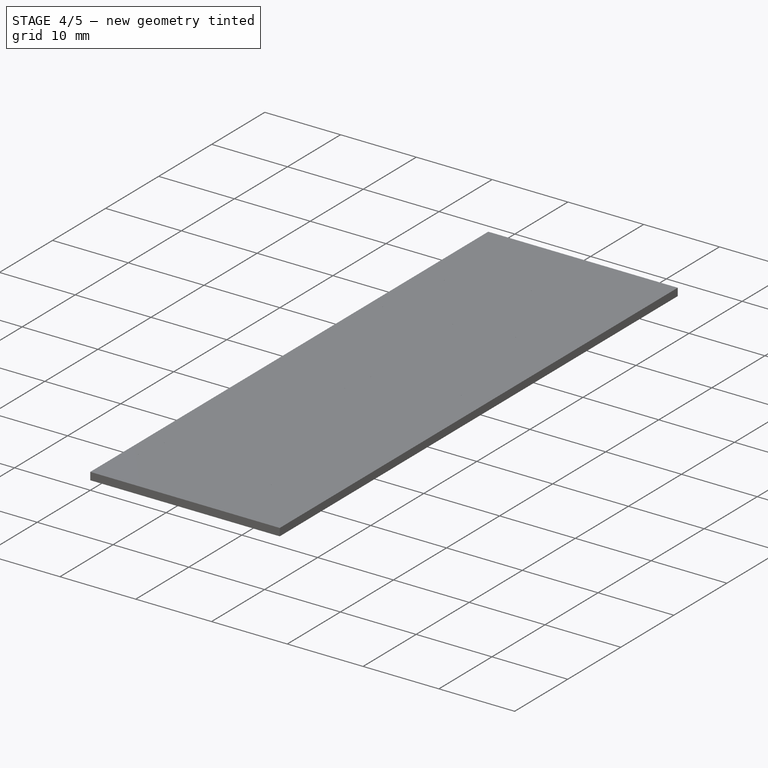
[diagram: stage 4 of 5 — iso view after this stage's code; geometry added in this stage tinted green]
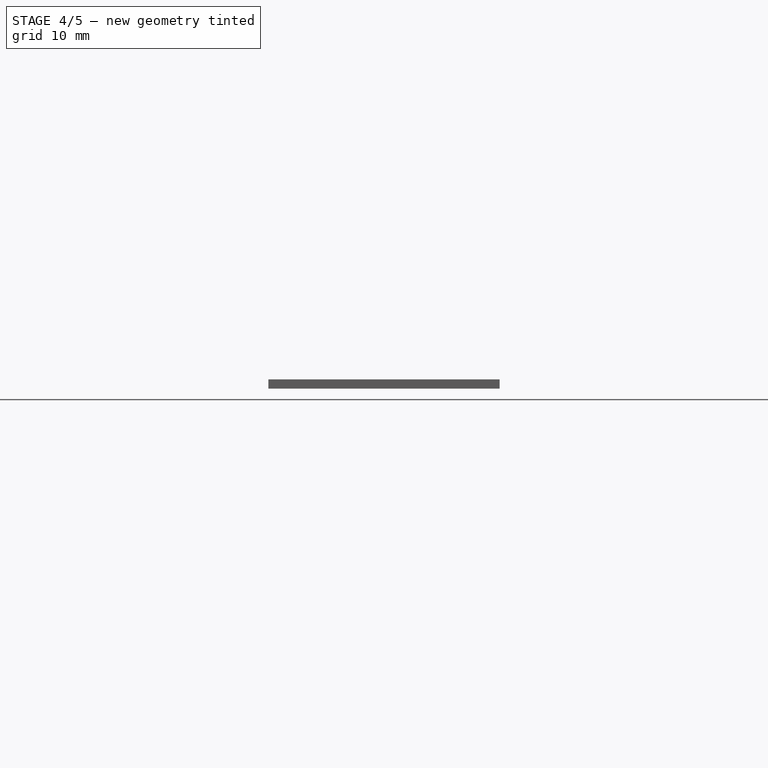
[diagram: stage 4 of 5 — front view after this stage's code; geometry added in this stage tinted green]
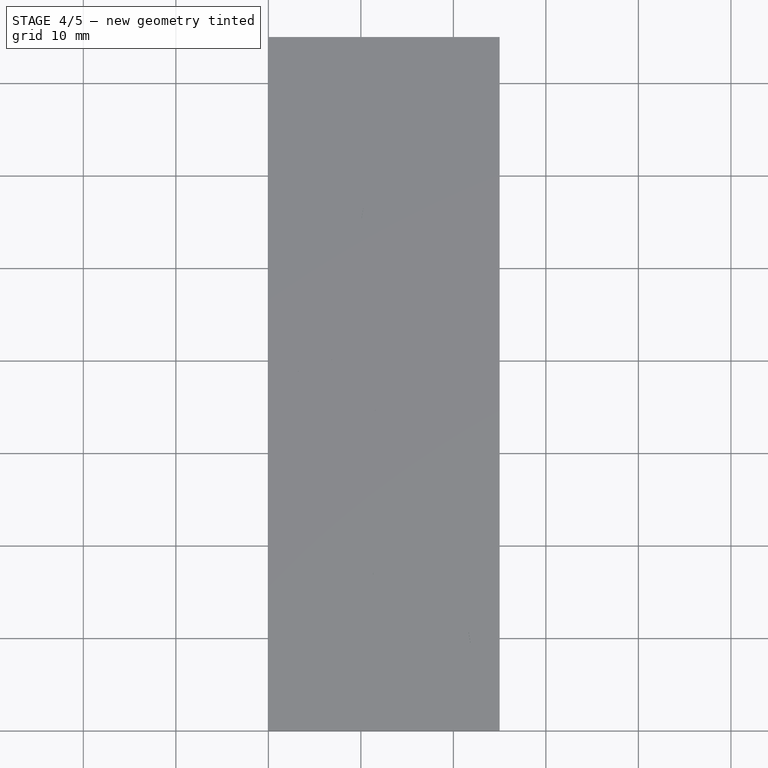
[diagram: stage 4 of 5 — top view after this stage's code; geometry added in this stage tinted green]
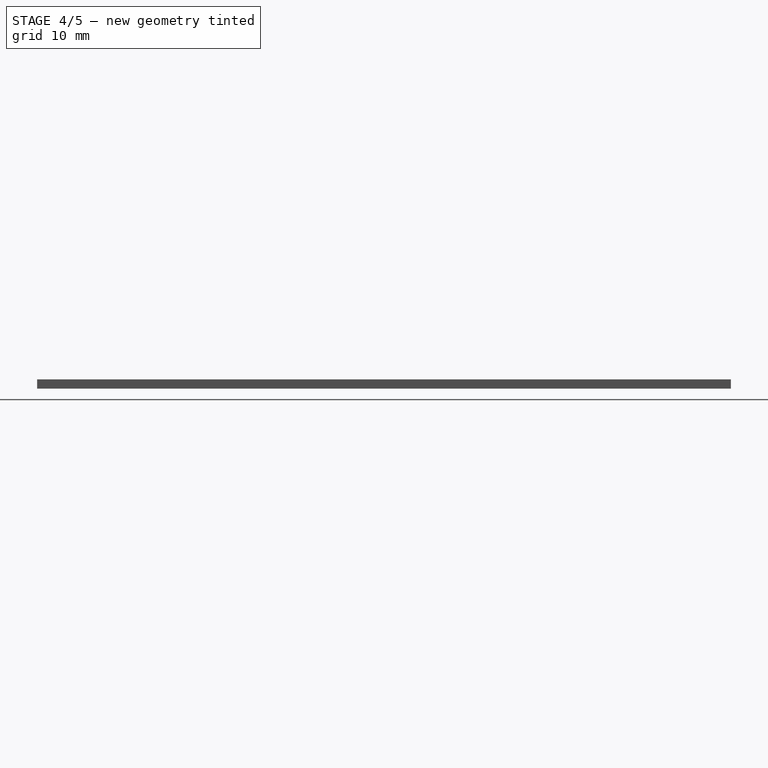
[diagram: stage 4 of 5 — right view after this stage's code; geometry added in this stage tinted green]
FEATURE [PartDesign::Body] Body001  label="Agujero Triangular - 50%"
  Group = -> [Sketch002,Pad001]
  Origin = -> Origin001
  Tip = -> Pad001
FEATURE [Sketcher::SketchObject] Sketch004
  FullyConstrained = true
  MapMode = 5
  Support = -> [XY_Plane004]
  sketch-geometry (3):
    g0: LineSegment StartX=12.5 StartY=65.625 StartZ=0 EndX=3.125 EndY=9.375 EndZ=0
    g1: LineSegment StartX=3.125 StartY=9.375 StartZ=0 EndX=21.875 EndY=9.375 EndZ=0
    g2: LineSegment StartX=21.875 StartY=9.375 StartZ=0 EndX=12.5 EndY=65.625 EndZ=0
  constraints (9):
    c: Coincident(g1,g0)
    c: Horizontal(g1)
    c: Coincident(g2,g1)
    c: Coincident(g2,g0)
    c: DistanceX(g1,g1) = 18.75
    c: DistanceY(g0,g0) = 56.25
    c: DistanceX(g0,g0) = 9.375
    c: DistanceY(g-1,g0) = 9.375
    c: DistanceX(g-1,g0) = 3.125
FEATURE [PartDesign::Pad] Pad003
  Direction = (0,0,1)
  Length = 2
  Length2 = 2
  Profile = -> Sketch004
  ReferenceAxis = -> Sketch004 [N_Axis]
  Refine = true
  Type = 4
FEATURE [PartDesign::Body] Body003  label="Agujero Triangular - 75%"
  Group = -> [Sketch004,Pad003]
  Origin = -> Origin003
  Tip = -> Pad003
FEATURE [Sketcher::SketchObject] Sketch005
  FullyConstrained = false
  MapMode = 5
  Support = -> [XY_Plane005]
  sketch-geometry (4):
    g0: ArcOfCircle CenterX=12.5 CenterY=37.49 CenterZ=0 NormalX=0 NormalY=0 NormalZ=1 AngleXU=0 Radius=6.25 StartAngle=0.00184505 EndAngle=3.1416
    g1: ArcOfCircle CenterX=12.5 CenterY=37.49 CenterZ=0 NormalX=0 NormalY=0 NormalZ=1 AngleXU=0 Radius=6.1 StartAngle=0.00189042 EndAngle=3.1416
    g2: LineSegment StartX=18.75 StartY=37.5016 StartZ=0 EndX=18.6 EndY=37.5016 EndZ=0
    g3: LineSegment StartX=6.4 StartY=37.49 StartZ=0 EndX=6.25 EndY=37.49 EndZ=0
  constraints (12):
    c: Coincident(g1,g0)
    c: Coincident(g2,g0)
    c: Coincident(g2,g1)
    c: Horizontal(g2)
    c: Coincident(g3,g1)
    c: Coincident(g3,g0)
    c: Horizontal(g3)
    c: DistanceX(g3,g3) = 0.15
    c: DistanceY(g0) = 37.49
    c: DistanceX(g0) = 6.25
    c: Radius(g1) = 6.1
    c: Radius(g0) = 6.25
FEATURE [PartDesign::Pad] Pad004
  Direction = (0,0,1)
  Length = 2
  Length2 = 2
  Profile = -> Sketch005
  ReferenceAxis = -> Sketch005 [N_Axis]
  Refine = true
  Type = 4
FEATURE [PartDesign::Body] Body004  label="Agujero Medialuna - 50%"
  Group = -> [Sketch005,Pad004]
  Origin = -> Origin004
  Tip = -> Pad004
FEATURE [Sketcher::SketchObject] Sketch006
  FullyConstrained = false
  MapMode = 5
  Support = -> [XY_Plane006]
  sketch-geometry (5):
    g0: GeomPoint X=12.5 Y=37.5286 Z=0
    g1: ArcOfCircle CenterX=12.5049 CenterY=37.5 CenterZ=0 NormalX=0 NormalY=0 NormalZ=1 AngleXU=0 Radius=9.38 StartAngle=0.000459488 EndAngle=3.13828
    g2: ArcOfCircle CenterX=12.5049 CenterY=37.5 CenterZ=0 NormalX=0 NormalY=0 NormalZ=1 AngleXU=0 Radius=9.21 StartAngle=0.00046797 EndAngle=3.13822
    g3: LineSegment StartX=21.8849 StartY=37.5043 StartZ=0 EndX=21.7149 EndY=37.5043 EndZ=0
    g4: LineSegment StartX=3.295 StartY=37.5311 StartZ=0 EndX=3.125 EndY=37.5311 EndZ=0
  constraints (12):
    c: DistanceX(g1,g0) = 9.375
    c: Radius(g1) = 9.38
    c: Coincident(g2,g1)
    c: DistanceY(g2,g1) = 0
    c: DistanceY(g1,g2) = 0
    c: Radius(g2) = 9.21
    c: Coincident(g3,g1)
    c: Coincident(g3,g2)
    c: Coincident(g4,g2)
    c: Coincident(g4,g1)
    c: DistanceX(g0) = 12.5
    c: DistanceY(g1) = 37.5
FEATURE [PartDesign::Pad] Pad005
  Direction = (0,0,1)
  Length = 2
  Length2 = 2
  Profile = -> Sketch006
  ReferenceAxis = -> Sketch006 [N_Axis]
  Refine = true
  Type = 4
FEATURE [Sketcher::SketchObject] Sketch019
  FullyConstrained = true
  MapMode = 5
  Support = -> [XY_Plane018]
  sketch-geometry (4):
    g0: LineSegment StartX=0 StartY=0 StartZ=0 EndX=25 EndY=0 EndZ=0
    g1: LineSegment StartX=25 StartY=0 StartZ=0 EndX=25 EndY=75 EndZ=0
    g2: LineSegment StartX=25 StartY=75 StartZ=0 EndX=0 EndY=75 EndZ=0
    g3: LineSegment StartX=0 StartY=75 StartZ=0 EndX=0 EndY=0 EndZ=0
  constraints (11):
    c: Coincident(g0,g-1)
    c: PointOnObject(g0,g-1)
    c: DistanceX(g0,g0) = 25
    c: Coincident(g1,g0)
    c: Vertical(g1)
    c: DistanceY(g1,g1) = 75
    c: Coincident(g2,g1)
    c: PointOnObject(g2,g-2)
    c: Horizontal(g2)
    c: Coincident(g3,g2)
    c: Coincident(g3,g0)
FEATURE [PartDesign::Pad] Pad018
  Direction = (0,0,1)
  Length = 1
  Length2 = 10
  Profile = -> Sketch019
  ReferenceAxis = -> Sketch019 [N_Axis]
  Refine = true
  Type = 0
FEATURE [Sketcher::SketchObject] Sketch020
  FullyConstrained = true
  MapMode = 5
  Support = -> [XY_Plane019]
  sketch-geometry (4):
    g0: LineSegment StartX=0 StartY=0 StartZ=0 EndX=25 EndY=0 EndZ=0
    g1: LineSegment StartX=25 StartY=0 StartZ=0 EndX=25 EndY=75 EndZ=0
    g2: LineSegment StartX=25 StartY=75 StartZ=0 EndX=0 EndY=75 EndZ=0
    g3: LineSegment StartX=0 StartY=75 StartZ=0 EndX=0 EndY=0 EndZ=0
  constraints (11):
    c: Coincident(g0,g-1)
    c: PointOnObject(g0,g-1)
    c: DistanceX(g0,g0) = 25
    c: Coincident(g1,g0)
    c: Vertical(g1)
    c: DistanceY(g1,g1) = 75
    c: Coincident(g2,g1)
    c: PointOnObject(g2,g-2)
    c: Horizontal(g2)
    c: Coincident(g3,g2)
    c: Coincident(g3,g0)
FEATURE [PartDesign::Pad] Pad019
  Direction = (0,0,1)
  Length = 1
  Length2 = 10
  Profile = -> Sketch020
  ReferenceAxis = -> Sketch020 [N_Axis]
  Refine = true
  Type = 0
FEATURE [Sketcher::SketchObject] Sketch021
  FullyConstrained = true
  MapMode = 5
  Support = -> [XY_Plane020]
  sketch-geometry (4):
    g0: LineSegment StartX=0 StartY=0 StartZ=0 EndX=25 EndY=0 EndZ=0
    g1: LineSegment StartX=25 StartY=0 StartZ=0 EndX=25 EndY=75 EndZ=0
    g2: LineSegment StartX=25 StartY=75 StartZ=0 EndX=0 EndY=75 EndZ=0
    g3: LineSegment StartX=0 StartY=75 StartZ=0 EndX=0 EndY=0 EndZ=0
  constraints (11):
    c: Coincident(g0,g-1)
    c: PointOnObject(g0,g-1)
    c: DistanceX(g0,g0) = 25
    c: Coincident(g1,g0)
    c: Vertical(g1)
    c: DistanceY(g1,g1) = 75
    c: Coincident(g2,g1)
    c: PointOnObject(g2,g-2)
    c: Horizontal(g2)
    c: Coincident(g3,g2)
    c: Coincident(g3,g0)
FEATURE [PartDesign::Pad] Pad020
  Direction = (0,0,1)
  Length = 1
  Length2 = 10
  Profile = -> Sketch021
  ReferenceAxis = -> Sketch021 [N_Axis]
  Refine = true
  Type = 0
FEATURE [PartDesign::Body] Body016  label="Agujero Triangular 50%"
  Group = -> [Sketch018,Pad017,Boolean001]
  Origin = -> Origin016
  Tip = -> Boolean001
FEATURE [PartDesign::Boolean] Boolean002
  BaseFeature = -> Pad018
  Group = -> [Body003]
  Refine = true
  Type = 1
FEATURE [PartDesign::Body] Body017  label="Agujero Triangular 75%"
  Group = -> [Sketch019,Pad018,Boolean002]
  Origin = -> Origin017
  Tip = -> Boolean002
FEATURE [PartDesign::Boolean] Boolean003
  BaseFeature = -> Pad019
  Group = -> [Body004]
  Refine = true
  Type = 1
FEATURE [PartDesign::Body] Body018  label="Agujero Medialuna 50%"
  Group = -> [Sketch020,Pad019,Boolean003]
  Origin = -> Origin018
  Tip = -> Boolean003
FEATURE [PartDesign::Boolean] Boolean004
  BaseFeature = -> Pad020
  Group = -> [Body005]
  Refine = true
  Type = 1
FEATURE [PartDesign::Body] Body019  label="Agujero Medialuna 75%"
  Group = -> [Sketch021,Pad020,Boolean004]
  Origin = -> Origin019
  Tip = -> Boolean004
FEATURE [PartDesign::Boolean] Boolean005
  BaseFeature = -> Pad021
  Group = -> [Body009,Body010,Body011,Body008,Body006,Body007,Body014,Body013,Body012]
  Refine = true
  Type = 1
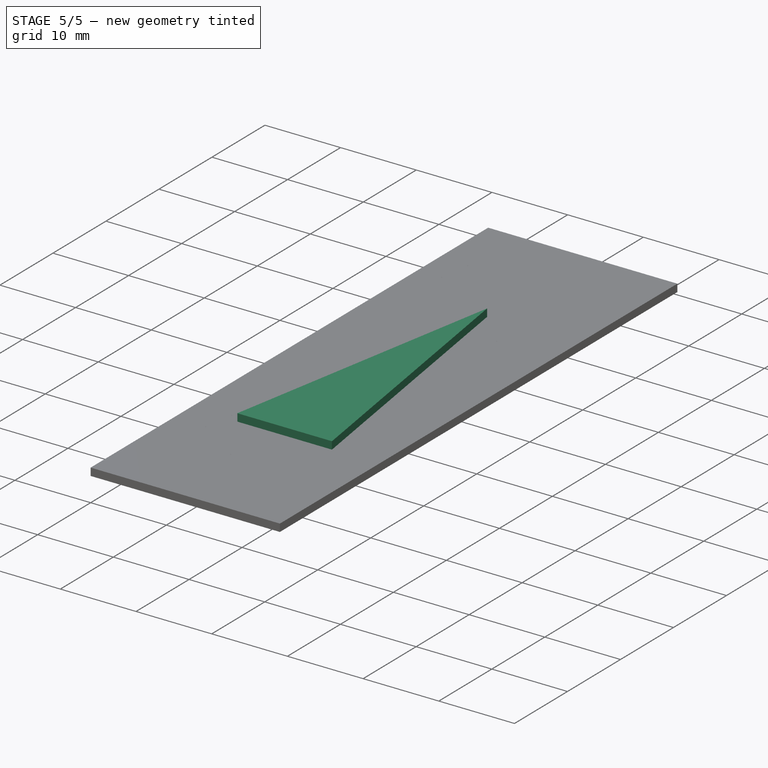
[diagram: stage 5 of 5 — iso view after this stage's code; geometry added in this stage tinted green]
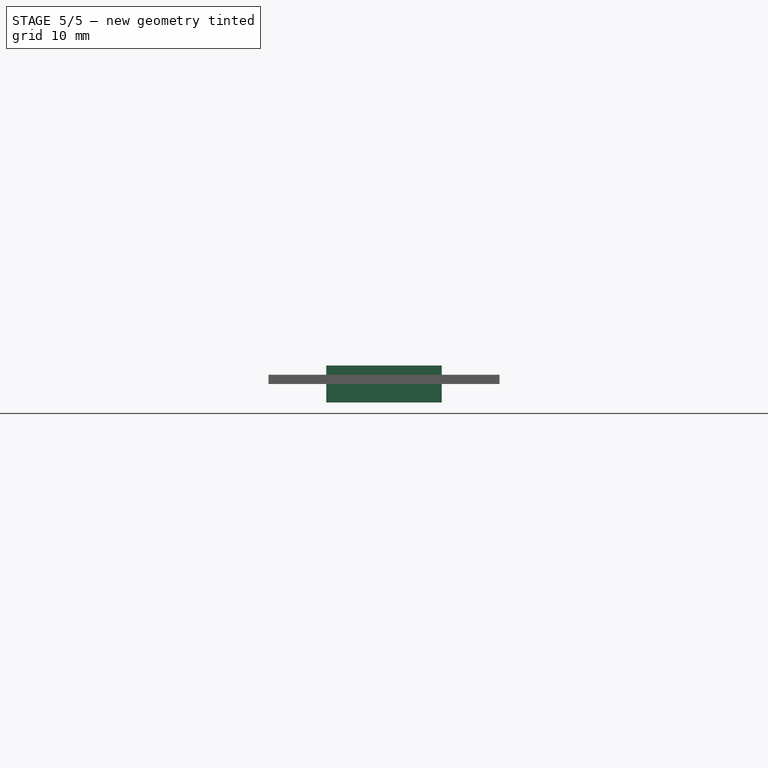
[diagram: stage 5 of 5 — front view after this stage's code; geometry added in this stage tinted green]
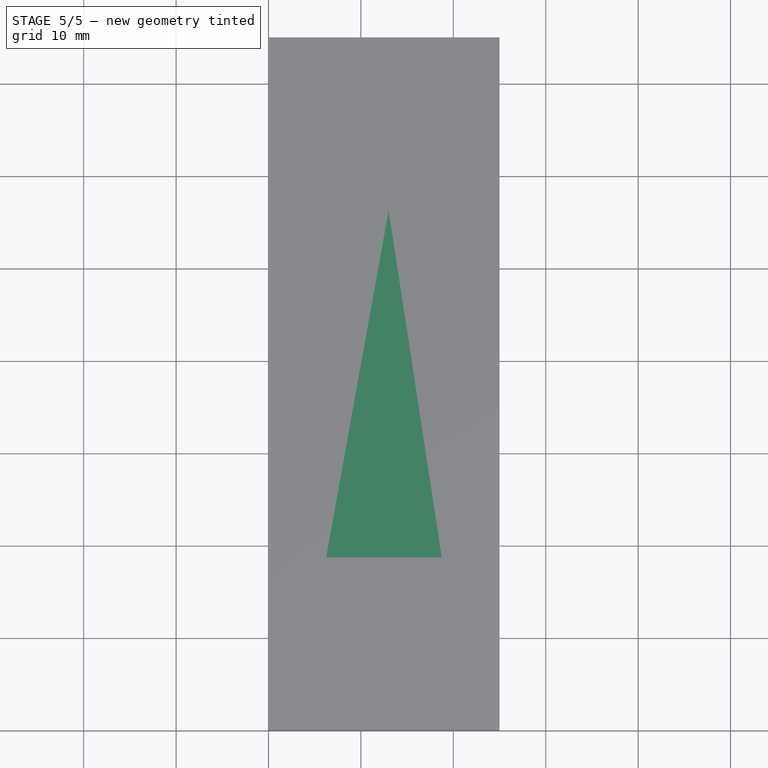
[diagram: stage 5 of 5 — top view after this stage's code; geometry added in this stage tinted green]
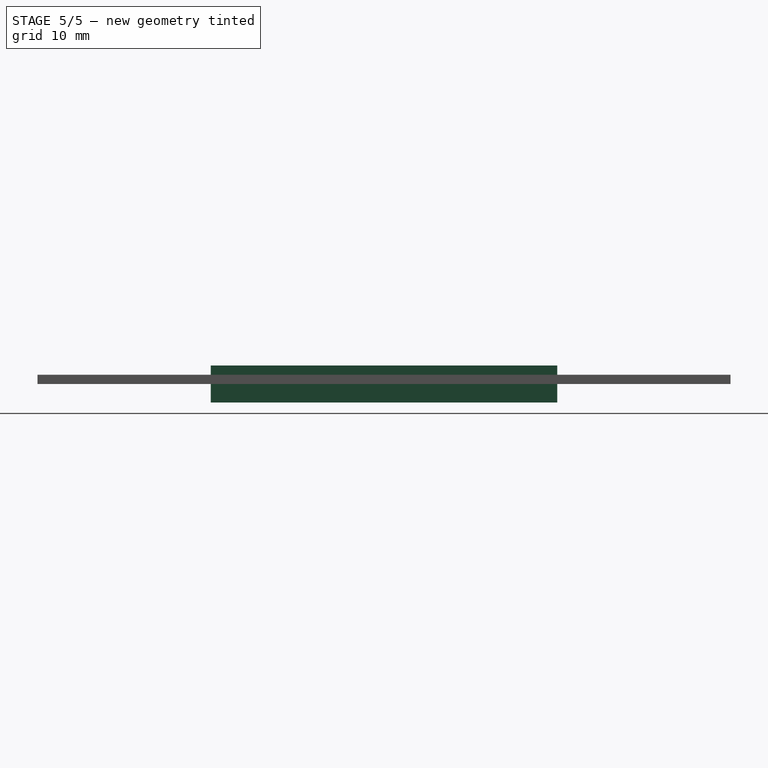
[diagram: stage 5 of 5 — right view after this stage's code; geometry added in this stage tinted green]
FEATURE [Sketcher::SketchObject] Sketch002
  FullyConstrained = true
  MapMode = 5
  Support = -> [XY_Plane001]
  sketch-geometry (3):
    g0: LineSegment StartX=13 StartY=56.25 StartZ=0 EndX=6.25 EndY=18.75 EndZ=0
    g1: LineSegment StartX=6.25 StartY=18.75 StartZ=0 EndX=18.75 EndY=18.75 EndZ=0
    g2: LineSegment StartX=18.75 StartY=18.75 StartZ=0 EndX=13 EndY=56.25 EndZ=0
  constraints (9):
    c: Coincident(g1,g0)
    c: Horizontal(g1)
    c: Coincident(g2,g1)
    c: Coincident(g2,g0)
    c: DistanceX(g1,g1) = 12.5
    c: DistanceY(g0,g0) = 37.5
    c: DistanceX(g0,g0) = 6.75
    c: DistanceY(g-1,g0) = 18.75
    c: DistanceX(g-1,g0) = 6.25
FEATURE [PartDesign::Pad] Pad001
  Direction = (0,0,1)
  Length = 2
  Length2 = 2
  Profile = -> Sketch002
  ReferenceAxis = -> Sketch002 [N_Axis]
  Refine = true
  Type = 4
FEATURE [PartDesign::Body] Body014  label="Agujero Triangular - 25% Pattern008"
  Group = -> [Pad015,Sketch016,LinearPattern008]
  Origin = -> Origin014
  Placement = pos=(-8,23,0) rot=(0,0,1;0rad)
  Tip = -> LinearPattern008
FEATURE [Sketcher::SketchObject] Sketch017
  FullyConstrained = true
  MapMode = 5
  Support = -> [XY_Plane016]
  sketch-geometry (3):
    g0: LineSegment StartX=13 StartY=56.25 StartZ=0 EndX=6.25 EndY=18.75 EndZ=0
    g1: LineSegment StartX=6.25 StartY=18.75 StartZ=0 EndX=18.75 EndY=18.75 EndZ=0
    g2: LineSegment StartX=18.75 StartY=18.75 StartZ=0 EndX=13 EndY=56.25 EndZ=0
  constraints (9):
    c: Coincident(g1,g0)
    c: Horizontal(g1)
    c: Coincident(g2,g1)
    c: Coincident(g2,g0)
    c: DistanceX(g1,g1) = 12.5
    c: DistanceY(g0,g0) = 37.5
    c: DistanceX(g0,g0) = 6.75
    c: DistanceY(g-1,g0) = 18.75
    c: DistanceX(g-1,g0) = 6.25
FEATURE [PartDesign::Pad] Pad016
  Direction = (0,0,1)
  Length = 2
  Length2 = 2
  Profile = -> Sketch017
  ReferenceAxis = -> Sketch017 [N_Axis]
  Refine = true
  Type = 4
FEATURE [PartDesign::Body] Body015  label="Agujero Triangular - 50%001"
  Group = -> [Sketch017,Pad016]
  Origin = -> Origin015
  Tip = -> Pad016
FEATURE [Sketcher::SketchObject] Sketch
  FullyConstrained = true
  MapMode = 5
  Support = -> [XY_Plane]
  sketch-geometry (4):
    g0: LineSegment StartX=0 StartY=0 StartZ=0 EndX=25 EndY=0 EndZ=0
    g1: LineSegment StartX=25 StartY=0 StartZ=0 EndX=25 EndY=75 EndZ=0
    g2: LineSegment StartX=25 StartY=75 StartZ=0 EndX=0 EndY=75 EndZ=0
    g3: LineSegment StartX=0 StartY=75 StartZ=0 EndX=0 EndY=0 EndZ=0
  constraints (11):
    c: Coincident(g0,g-1)
    c: PointOnObject(g0,g-1)
    c: DistanceX(g0,g0) = 25
    c: Coincident(g1,g0)
    c: Vertical(g1)
    c: DistanceY(g1,g1) = 75
    c: Coincident(g2,g1)
    c: PointOnObject(g2,g-2)
    c: Horizontal(g2)
    c: Coincident(g3,g2)
    c: Coincident(g3,g0)
FEATURE [PartDesign::Pad] Pad
  Direction = (0,0,1)
  Length = 1
  Length2 = 10
  Profile = -> Sketch
  ReferenceAxis = -> Sketch [N_Axis]
  Refine = true
  Type = 0
FEATURE [Sketcher::SketchObject] Sketch003
  FullyConstrained = true
  MapMode = 5
  Support = -> [XY_Plane003]
  sketch-geometry (3):
    g0: LineSegment StartX=12.5 StartY=46.875 StartZ=0 EndX=9.375 EndY=28.125 EndZ=0
    g1: LineSegment StartX=9.375 StartY=28.125 StartZ=0 EndX=15.625 EndY=28.125 EndZ=0
    g2: LineSegment StartX=15.625 StartY=28.125 StartZ=0 EndX=12.5 EndY=46.875 EndZ=0
  constraints (9):
    c: Coincident(g1,g0)
    c: Horizontal(g1)
    c: Coincident(g2,g1)
    c: Coincident(g2,g0)
    c: DistanceX(g1,g1) = 6.25
    c: DistanceY(g0,g0) = 18.75
    c: DistanceX(g0,g0) = 3.125
    c: DistanceY(g-1,g0) = 28.125
    c: DistanceX(g-1,g0) = 9.375
FEATURE [PartDesign::Pad] Pad002
  Direction = (0,0,1)
  Length = 2
  Length2 = 2
  Profile = -> Sketch003
  ReferenceAxis = -> Sketch003 [N_Axis]
  Refine = true
  Type = 4
FEATURE [PartDesign::Body] Body002  label="Agujero Triangular - 25%"
  Group = -> [Sketch003,Pad002]
  Origin = -> Origin002
  Tip = -> Pad002
FEATURE [Sketcher::SketchObject] Sketch018
  FullyConstrained = true
  MapMode = 5
  Support = -> [XY_Plane017]
  sketch-geometry (4):
    g0: LineSegment StartX=0 StartY=0 StartZ=0 EndX=25 EndY=0 EndZ=0
    g1: LineSegment StartX=25 StartY=0 StartZ=0 EndX=25 EndY=75 EndZ=0
    g2: LineSegment StartX=25 StartY=75 StartZ=0 EndX=0 EndY=75 EndZ=0
    g3: LineSegment StartX=0 StartY=75 StartZ=0 EndX=0 EndY=0 EndZ=0
  constraints (11):
    c: Coincident(g0,g-1)
    c: PointOnObject(g0,g-1)
    c: DistanceX(g0,g0) = 25
    c: Coincident(g1,g0)
    c: Vertical(g1)
    c: DistanceY(g1,g1) = 75
    c: Coincident(g2,g1)
    c: PointOnObject(g2,g-2)
    c: Horizontal(g2)
    c: Coincident(g3,g2)
    c: Coincident(g3,g0)
FEATURE [PartDesign::Pad] Pad017
  Direction = (0,0,1)
  Length = 1
  Length2 = 10
  Profile = -> Sketch018
  ReferenceAxis = -> Sketch018 [N_Axis]
  Refine = true
  Type = 0
FEATURE [Sketcher::SketchObject] Sketch025
  FullyConstrained = true
  MapMode = 5
  Support = -> [XY_Plane024]
  sketch-geometry (4):
    g0: LineSegment StartX=0 StartY=0 StartZ=0 EndX=25 EndY=0 EndZ=0
    g1: LineSegment StartX=25 StartY=0 StartZ=0 EndX=25 EndY=75 EndZ=0
    g2: LineSegment StartX=25 StartY=75 StartZ=0 EndX=0 EndY=75 EndZ=0
    g3: LineSegment StartX=0 StartY=75 StartZ=0 EndX=0 EndY=0 EndZ=0
  constraints (11):
    c: Coincident(g0,g-1)
    c: PointOnObject(g0,g-1)
    c: DistanceX(g0,g0) = 25
    c: Coincident(g1,g0)
    c: Vertical(g1)
    c: DistanceY(g1,g1) = 75
    c: Coincident(g2,g1)
    c: PointOnObject(g2,g-2)
    c: Horizontal(g2)
    c: Coincident(g3,g2)
    c: Coincident(g3,g0)
FEATURE [PartDesign::Pad] Pad024
  Direction = (0,0,1)
  Length = 1
  Length2 = 10
  Profile = -> Sketch025
  ReferenceAxis = -> Sketch025 [N_Axis]
  Refine = true
  Type = 0
FEATURE [PartDesign::Body] Body023  label="Placa008"
  Group = -> [Sketch025,Pad024]
  Origin = -> Origin023
  Tip = -> Pad024
FEATURE [Sketcher::SketchObject] Sketch026
  FullyConstrained = true
  MapMode = 5
  Support = -> [XY_Plane025]
  sketch-geometry (4):
    g0: LineSegment StartX=0 StartY=0 StartZ=0 EndX=25 EndY=0 EndZ=0
    g1: LineSegment StartX=25 StartY=0 StartZ=0 EndX=25 EndY=75 EndZ=0
    g2: LineSegment StartX=25 StartY=75 StartZ=0 EndX=0 EndY=75 EndZ=0
    g3: LineSegment StartX=0 StartY=75 StartZ=0 EndX=0 EndY=0 EndZ=0
  constraints (11):
    c: Coincident(g0,g-1)
    c: PointOnObject(g0,g-1)
    c: DistanceX(g0,g0) = 25
    c: Coincident(g1,g0)
    c: Vertical(g1)
    c: DistanceY(g1,g1) = 75
    c: Coincident(g2,g1)
    c: PointOnObject(g2,g-2)
    c: Horizontal(g2)
    c: Coincident(g3,g2)
    c: Coincident(g3,g0)
FEATURE [PartDesign::Pad] Pad025
  Direction = (0,0,1)
  Length = 1
  Length2 = 10
  Profile = -> Sketch026
  ReferenceAxis = -> Sketch026 [N_Axis]
  Refine = true
  Type = 0
FEATURE [PartDesign::Body] Body024  label="Placa009"
  Group = -> [Sketch026,Pad025]
  Origin = -> Origin024
  Tip = -> Pad025
FEATURE [PartDesign::Boolean] Boolean
  BaseFeature = -> Pad
  Group = -> [Body002]
  Refine = true
  Type = 1
FEATURE [PartDesign::Body] Body  label="Agujero Triangular 25%"
  Group = -> [Sketch,Pad,Boolean]
  Origin = -> Origin
  Tip = -> Boolean
FEATURE [PartDesign::Boolean] Boolean001
  BaseFeature = -> Pad017
  Group = -> [Body001]
  Refine = true
  Type = 1
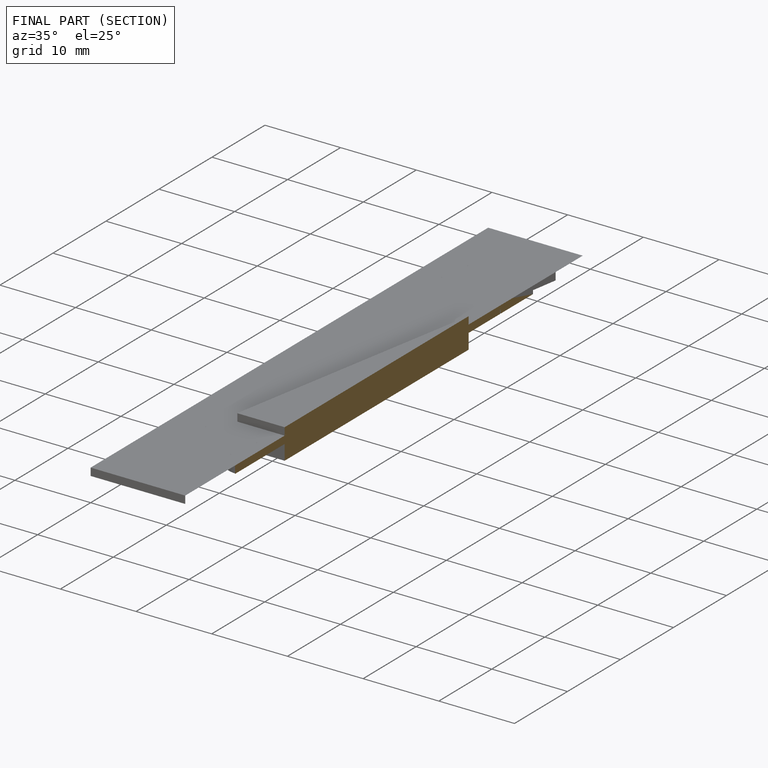
[diagram: finished part — half-section view (interior)]
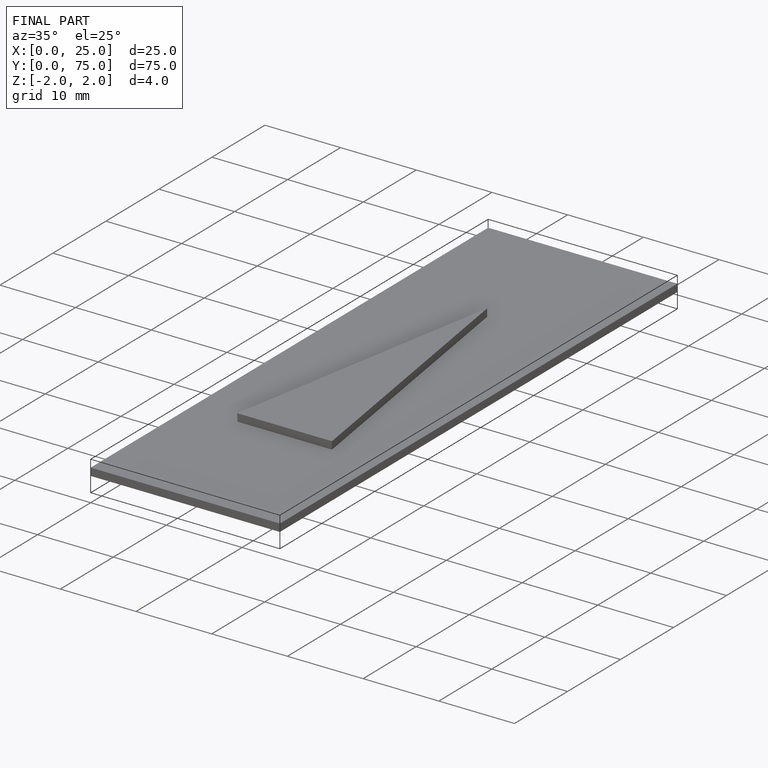
[diagram: finished part — iso view with bounding-box wireframe]
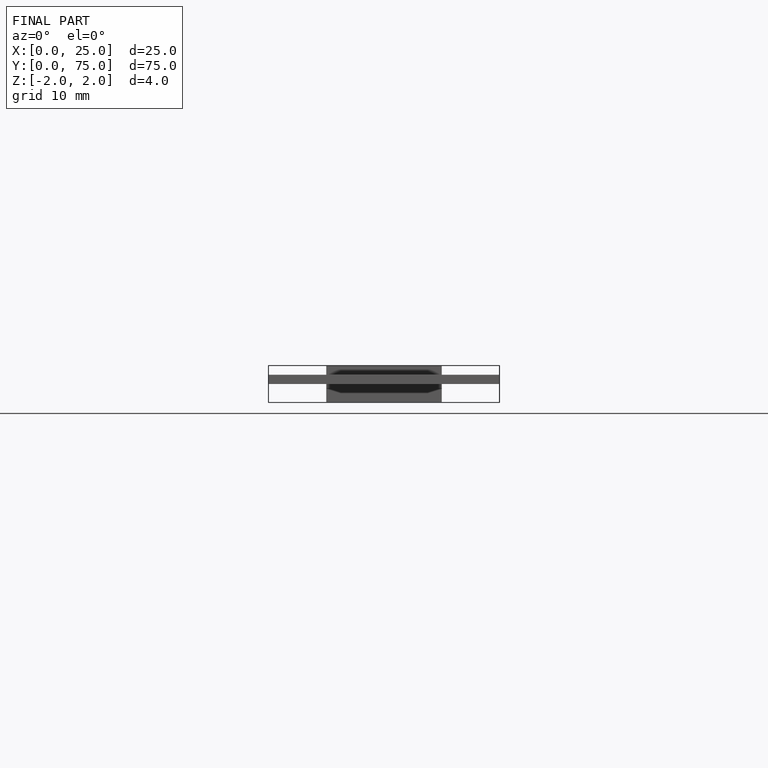
[diagram: finished part — front view with bounding-box wireframe]
